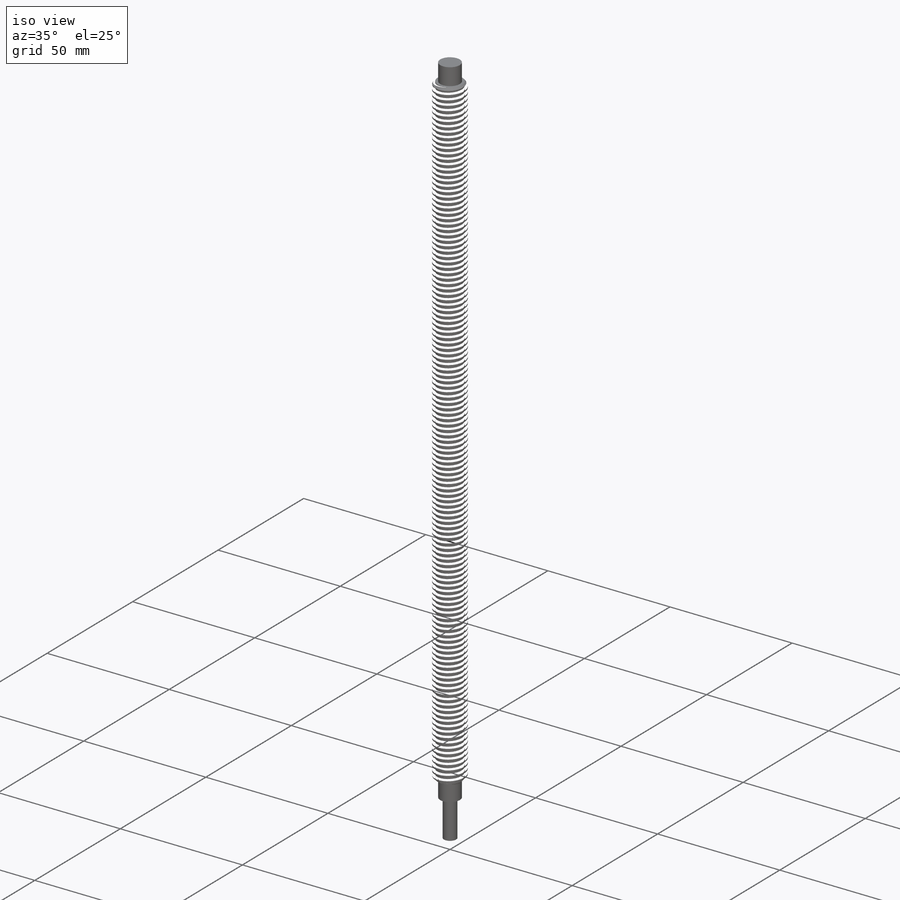
[diagram: iso view]
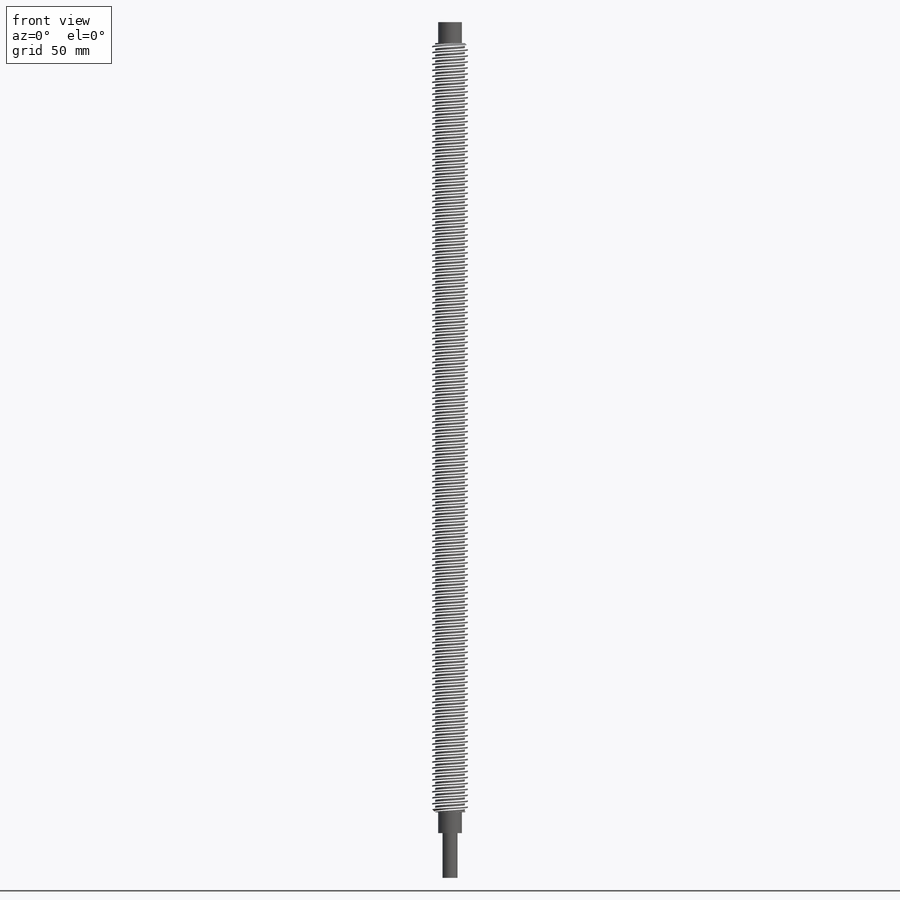
[diagram: front view]
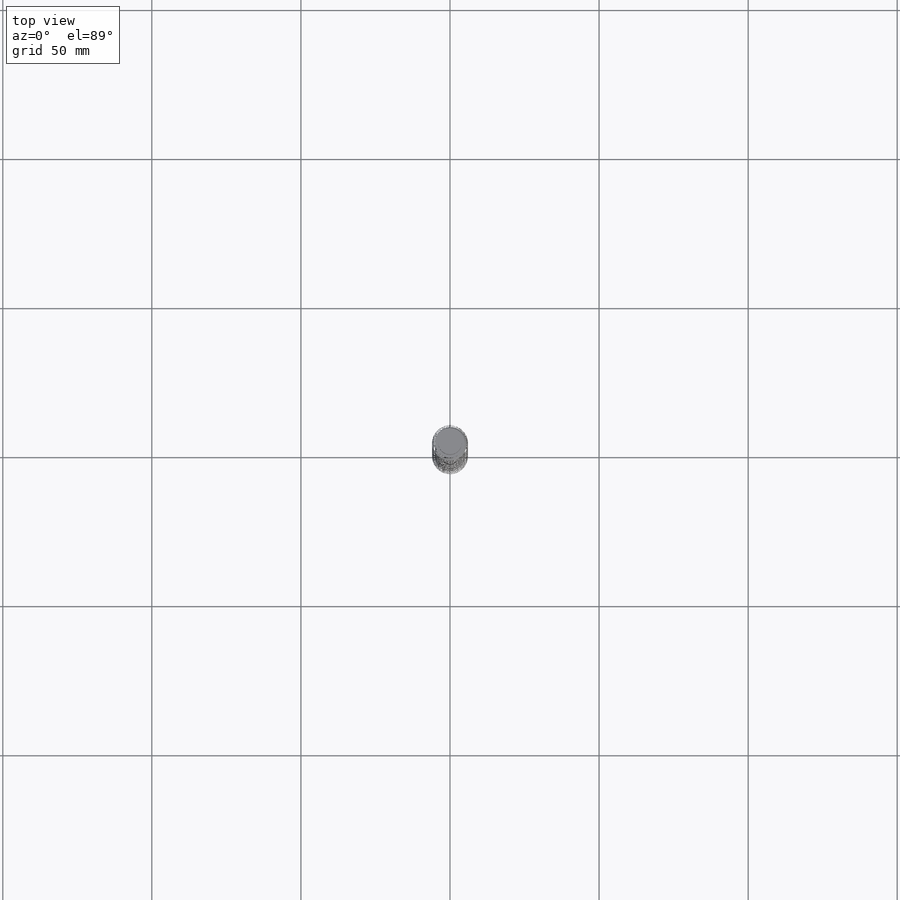
[diagram: top view]
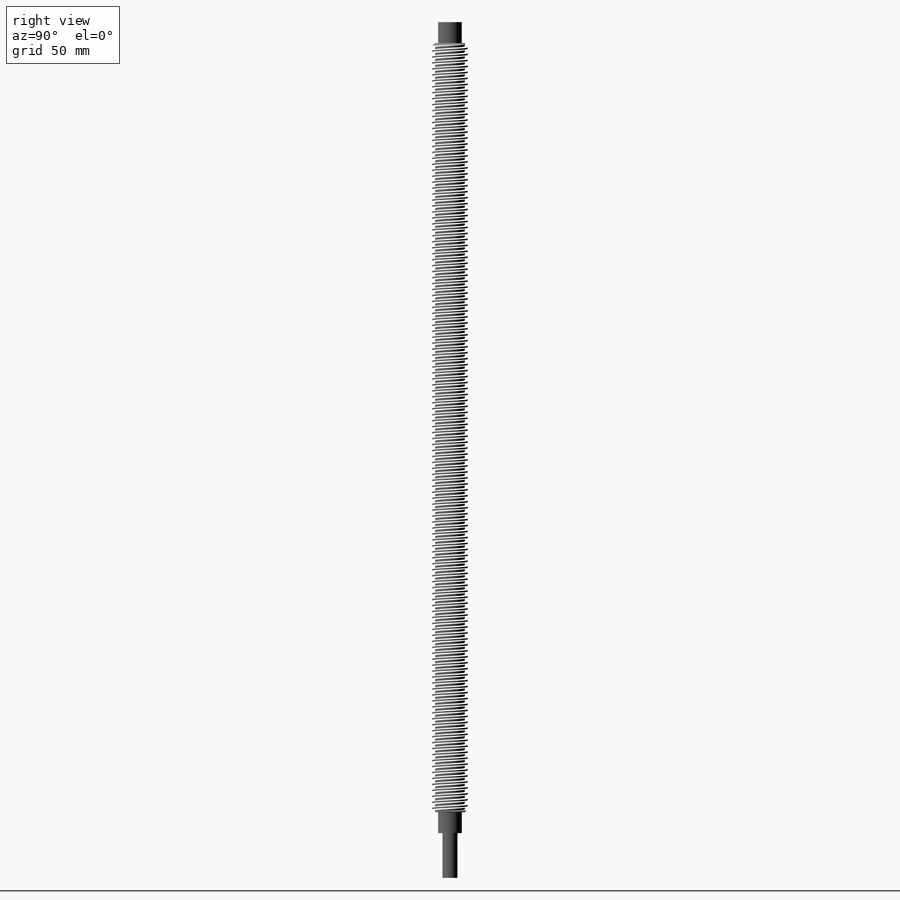
[diagram: right view]
SOLIDWORKS PART (.sldprt)
format: sldprt  version: not decoded by parser v0  size: 2,831,360 bytes
history: native  units: mm
features: sketch x3, material x1, revolve x1, helix x1, plane x1, chamfer x1, sweep x1 (+11 scaffold rows collapsed)
feature tree (20):
  scaffold x11  (default folders/planes/origin — collapsed)
  material  "Plain Carbon Steel"
  sketch  "Sketch1"  dims[D1=258.0mm D2=7.0mm D3=7.0mm D4=15.0mm D5=5.0mm D6=8.0mm D7=12.0mm]
  revolve  "Revolve1"  Angle=360deg
  sketch  "Sketch3"
  helix  "Helix/Spiral1"  Pitch=270mm
  plane  "Plane1"
  chamfer  "Chamfer1"  Distance=1mm Angle=45deg
  sketch  "Sketch4"  dims[D1=1.0mm D2=1.5mm D3=0.75mm D4=~0.863495mm]
  sweep  "Cut-Sweep1"
decode coverage: 5 of 7 modeling features carry decoded parameters
note: ~ marks probable driven/reference dimensions
note: suppression state not decoded; provenance and decode notes live in map.json
